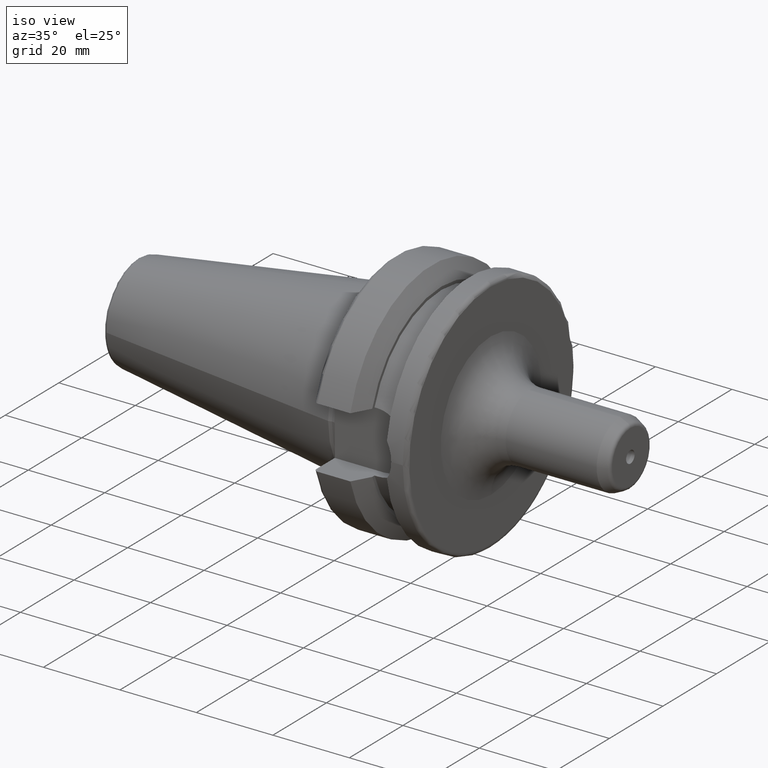
[diagram: clean part render]
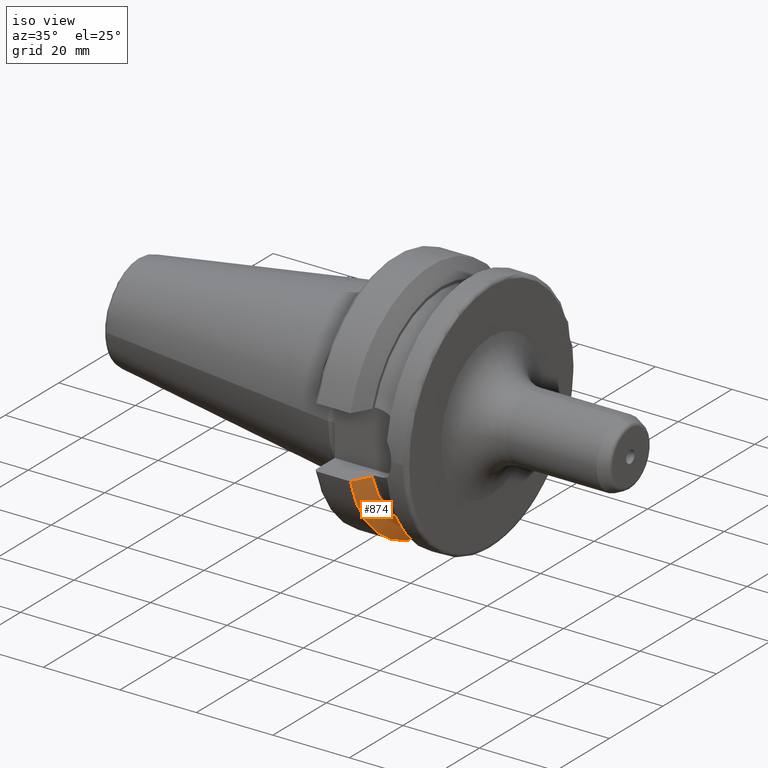
[diagram: same view with one face highlighted and labeled with its STEP entity id]
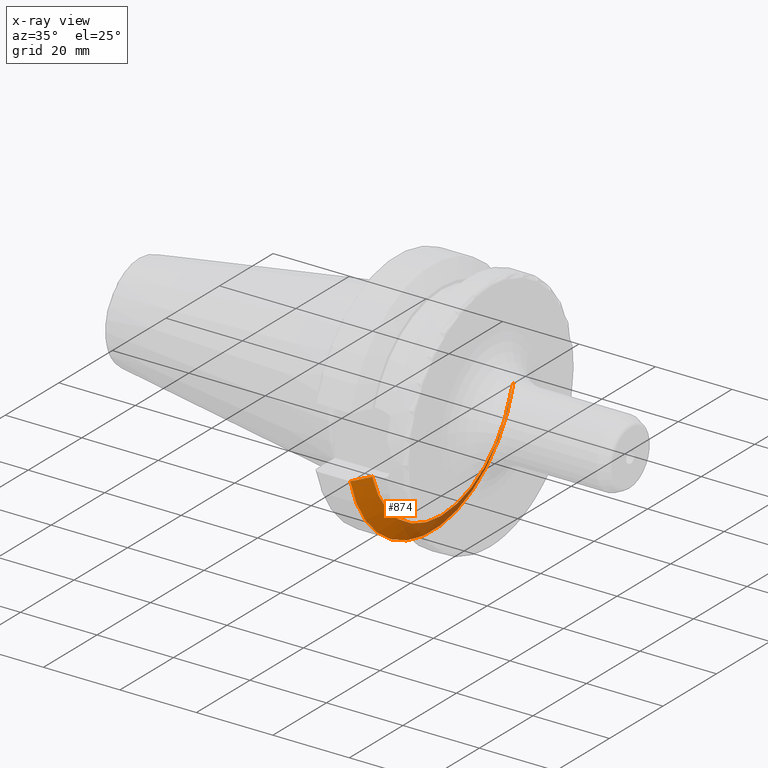
[diagram: x-ray of the same camera — body ghosted, the highlighted face saturated]
A machine part, iso view. The second image highlights one B-rep face of the part: STEP entity #874.
The next image is the same camera in x-ray: the body ghosted, the highlighted face saturated — about 32% of this face is hidden behind the body in this view.
In plain terms, the highlighted conical surface has half-angle 60.125 deg.
Its self-contained STEP definition (entity closure, byte-faithful):
#16=(
BOUNDED_CURVE()
B_SPLINE_CURVE(2,(#1703,#1704,#1705),.UNSPECIFIED.,.F.,.F.)
B_SPLINE_CURVE_WITH_KNOTS((3,3),(0.,0.52358279083281),.UNSPECIFIED.)
CURVE()
GEOMETRIC_REPRESENTATION_ITEM()
RATIONAL_B_SPLINE_CURVE((1.,1.00307360097546,1.))
REPRESENTATION_ITEM('')
);
#17=(
BOUNDED_CURVE()
B_SPLINE_CURVE(2,(#1760,#1761,#1762),.UNSPECIFIED.,.F.,.F.)
B_SPLINE_CURVE_WITH_KNOTS((3,3),(0.,0.52358279083281),.UNSPECIFIED.)
CURVE()
GEOMETRIC_REPRESENTATION_ITEM()
RATIONAL_B_SPLINE_CURVE((1.,1.00307360097546,1.))
REPRESENTATION_ITEM('')
);
#49=CONICAL_SURFACE('',#978,29.2970358274569,1.0493792127616);
#90=CIRCLE('',#977,27.0940716549138);
#91=CIRCLE('',#979,31.5000000000001);
#162=FACE_OUTER_BOUND('',#219,.T.);
#219=EDGE_LOOP('',(#715,#716,#717,#718));
#411=VERTEX_POINT('',#1700);
#412=VERTEX_POINT('',#1702);
#421=VERTEX_POINT('',#1754);
#422=VERTEX_POINT('',#1758);
#512=EDGE_CURVE('',#412,#411,#16,.T.);
#528=EDGE_CURVE('',#412,#421,#90,.T.);
#530=EDGE_CURVE('',#411,#422,#91,.T.);
#531=EDGE_CURVE('',#422,#421,#17,.T.);
#715=ORIENTED_EDGE('',*,*,#512,.T.);
#716=ORIENTED_EDGE('',*,*,#530,.T.);
#717=ORIENTED_EDGE('',*,*,#531,.T.);
#718=ORIENTED_EDGE('',*,*,#528,.F.);
#874=ADVANCED_FACE('',(#162),#49,.T.);
#977=AXIS2_PLACEMENT_3D('',#1755,#1171,#1172);
#978=AXIS2_PLACEMENT_3D('',#1757,#1174,#1175);
#979=AXIS2_PLACEMENT_3D('',#1759,#1176,#1177);
#1171=DIRECTION('center_axis',(1.,0.,0.));
#1172=DIRECTION('ref_axis',(0.,0.,-1.));
#1174=DIRECTION('center_axis',(-1.,0.,0.));
#1175=DIRECTION('ref_axis',(0.,1.,0.));
#1176=DIRECTION('center_axis',(1.,0.,0.));
#1177=DIRECTION('ref_axis',(0.,0.,-1.));
#1700=CARTESIAN_POINT('',(11.5690363073382,-30.4540227227866,-8.05));
#1702=CARTESIAN_POINT('',(14.1,-25.8705666509569,-8.05));
#1703=CARTESIAN_POINT('Ctrl Pts',(14.1,-25.8705666509569,-8.05));
#1704=CARTESIAN_POINT('Ctrl Pts',(12.9374976962938,-27.989970265181,-8.05));
#1705=CARTESIAN_POINT('Ctrl Pts',(11.5690363073382,-30.4540227227866,-8.05));
#1754=CARTESIAN_POINT('',(14.1,25.8705666509569,-8.05));
#1755=CARTESIAN_POINT('Origin',(14.1,0.,0.));
#1757=CARTESIAN_POINT('Origin',(12.8345181536691,0.,0.));
#1758=CARTESIAN_POINT('',(11.5690363073382,30.4540227227866,-8.05));
#1759=CARTESIAN_POINT('Origin',(11.5690363073382,0.,0.));
#1760=CARTESIAN_POINT('Ctrl Pts',(11.5690363073382,30.4540227227866,-8.05));
#1761=CARTESIAN_POINT('Ctrl Pts',(12.9374976962938,27.989970265181,-8.05));
#1762=CARTESIAN_POINT('Ctrl Pts',(14.1,25.8705666509569,-8.05));